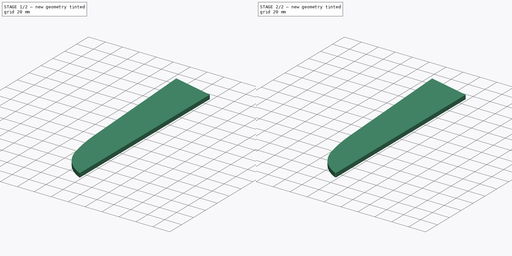
[diagram: build sequence overview — one tinted view per stage of 2, left to right]
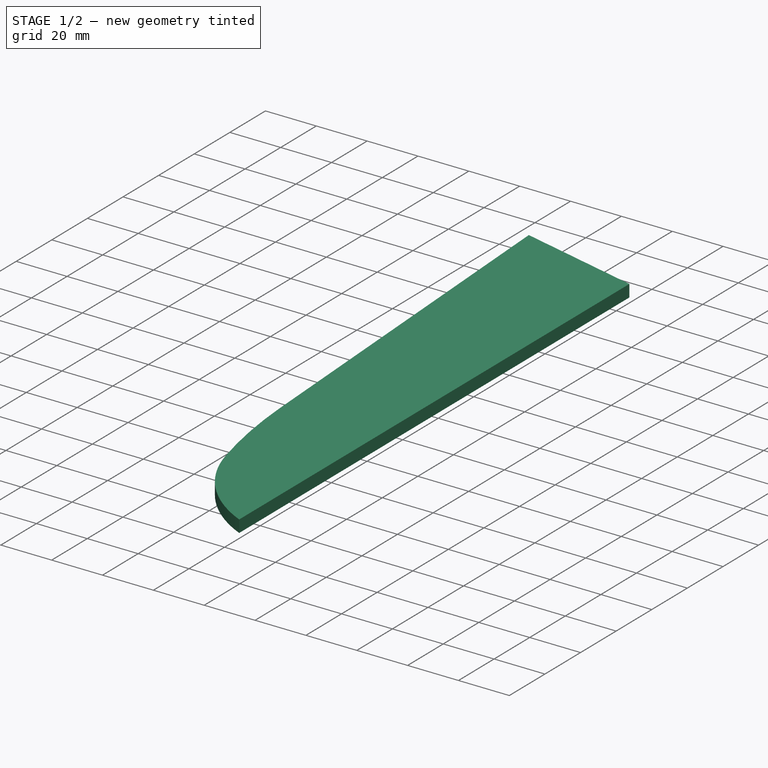
[diagram: stage 1 of 2 — iso view after this stage's code; geometry added in this stage tinted green]
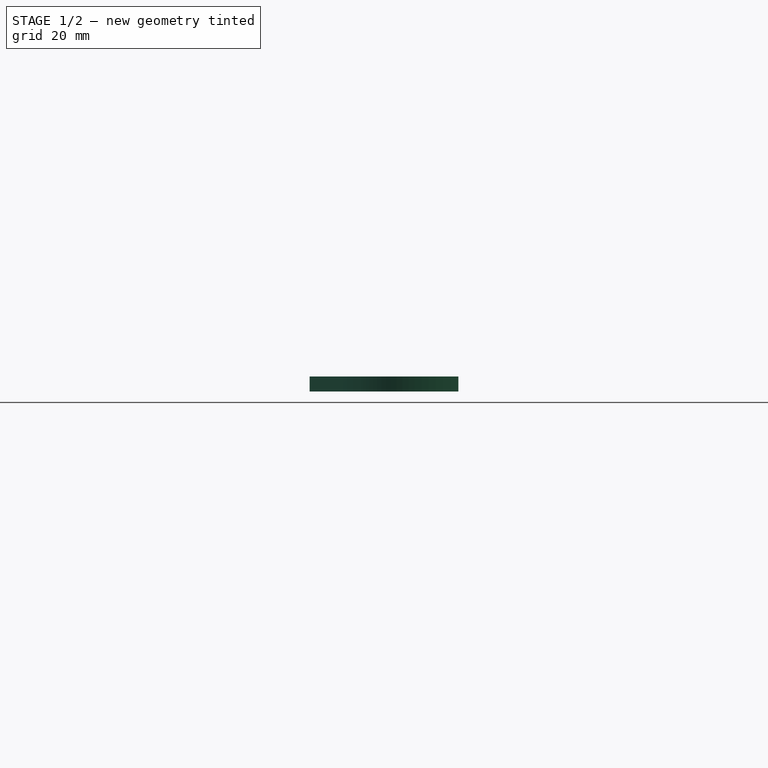
[diagram: stage 1 of 2 — front view after this stage's code; geometry added in this stage tinted green]
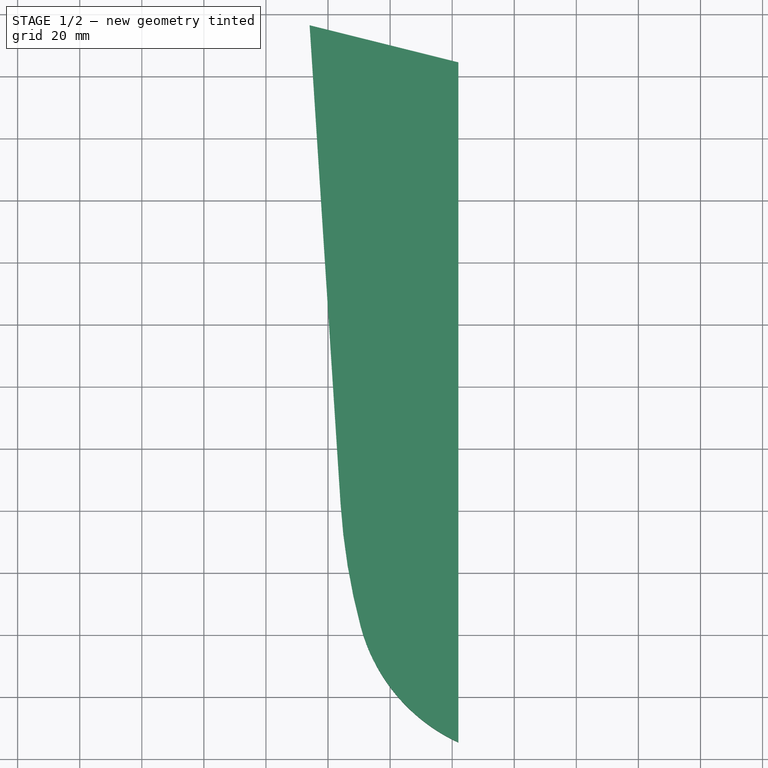
[diagram: stage 1 of 2 — top view after this stage's code; geometry added in this stage tinted green]
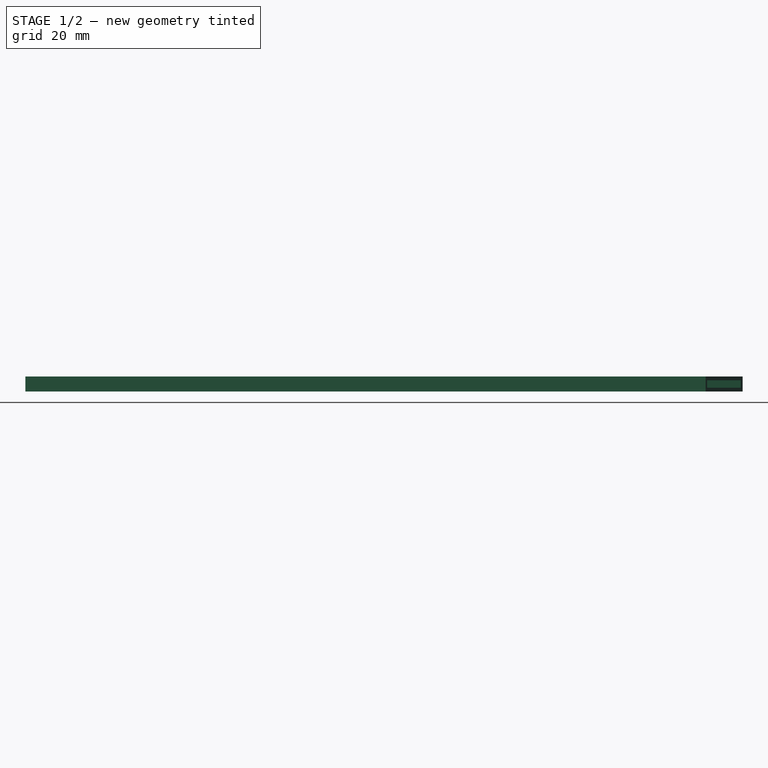
[diagram: stage 1 of 2 — right view after this stage's code; geometry added in this stage tinted green]
FCSTD DOCUMENT  (FreeCAD 0.21R33668 +26 (Git))
Label: Knifehull
License: Creative Commons Attribution 4.0
LicenseURL: https://creativecommons.org/licenses/by/4.0/
objects: Sketcher::SketchObject×2, Image::ImagePlane×1, PartDesign::Pad×1, PartDesign::Pocket×1, PartDesign::Chamfer×1, PartDesign::Body×1
note: 9 computed .brp shape members not serialized (recipe doc carries the construction recipe); baked Part::Feature solids carry a one-line shape summary decoded from their .brp

FEATURE [Image::ImagePlane] Scan_20231205
  Placement = pos=(-47.0947,-48.2734,0) rot=(0,0,-1;0.236492rad)
  XSize = 215.9
  YSize = 296.842
FEATURE [Sketcher::SketchObject] Sketch
  FullyConstrained = true
  MapMode = 5
  Support = -> [XY_Plane]
  sketch-geometry (5):
    g0: LineSegment StartX=0 StartY=85.0335 StartZ=0 EndX=-7.1e-15 EndY=-130.966 EndZ=0
    g1: ArcOfCircle CenterX=26 CenterY=-82.5 CenterZ=0 NormalX=0 NormalY=0 NormalZ=1 AngleXU=0 Radius=55 StartAngle=3.40139 EndAngle=4.22001
    g2: ArcOfCircle CenterX=170 CenterY=-44.2247 CenterZ=0 NormalX=0 NormalY=0 NormalZ=1 AngleXU=0 Radius=204 StartAngle=3.20617 EndAngle=3.40139
    g3: LineSegment StartX=-33.5748 StartY=-57.3893 StartZ=0 EndX=-43.486 EndY=95.8758 EndZ=0
    g4: LineSegment StartX=-43.486 StartY=95.8758 StartZ=0 EndX=0 EndY=85.0335 EndZ=0
  constraints (15):
    c: PointOnObject(g0,g-2)
    c: PointOnObject(g0,g-2)
    c: Radius(g2) = 204
    c: Radius(g1) = 55
    c: Tangent(g2,g1) = -1.5708
    c: Coincident(g0,g1)
    c: Coincident(g4,g3)
    c: Coincident(g4,g0)
    c: Angle(g4,g0) = 1.81514
    c: Angle(g3,g4) = 1.26187
    c: DistanceY(g0,g0) = 216
    c: DistanceX(g-1,g2) = 170
    c: DistanceX(g-1,g1) = 26
    c: DistanceY(g1,g-1) = 82.5
    c: Tangent(g3,g2) = 1.5708
FEATURE [Sketcher::SketchObject] Sketch001
  ExternalGeometry = -> [Sketch]
  FullyConstrained = true
  MapMode = 5
  Support = -> [XY_Plane]
  sketch-geometry (6):
    g0: ArcOfCircle CenterX=170 CenterY=-44.2247 CenterZ=0 NormalX=0 NormalY=0 NormalZ=1 AngleXU=0 Radius=206.4 StartAngle=3.20617 EndAngle=3.40139
    g1: ArcOfCircle CenterX=26 CenterY=-82.5 CenterZ=0 NormalX=0 NormalY=0 NormalZ=1 AngleXU=0 Radius=57.4 StartAngle=3.40139 EndAngle=4.28102
    g2: LineSegment StartX=2 StartY=-134.642 StartZ=0 EndX=2 EndY=84.5349 EndZ=0
    g3: LineSegment StartX=-35.9698 StartY=-57.5442 StartZ=0 EndX=-45.9304 EndY=96.4853 EndZ=0
    g4: LineSegment StartX=-45.9304 StartY=96.4853 StartZ=0 EndX=2 EndY=84.5349 EndZ=0
    g5: LineSegment StartX=-43.486 StartY=95.8758 StartZ=0 EndX=-45.881 EndY=95.7209 EndZ=0
  constraints (16):
    c: Coincident(g0,g-5)
    c: Coincident(g1,g-6)
    c: Vertical(g2)
    c: Coincident(g4,g3)
    c: Coincident(g4,g2)
    c: PointOnObject(g-3,g4)
    c: PointOnObject(g-4,g4)
    c: Coincident(g1,g2)
    c: Tangent(g3,g0) = 1.5708
    c: Parallel(g3,g-7)
    c: DistanceX(g-3,g2) = 2
    c: Tangent(g1,g0) = -1.5708
    c: Coincident(g5,g-7)
    c: PointOnObject(g5,g3)
    c: Perpendicular(g5,g3)
    c: Distance(g5) = 2.4
FEATURE [PartDesign::Pad] Pad
  Direction = (0,0,1)
  Length = 4.8
  Length2 = 10
  Midplane = true
  Profile = -> Sketch001
  ReferenceAxis = -> Sketch001 [N_Axis]
  Refine = true
  Type = 0
FEATURE [PartDesign::Pocket] Pocket
  BaseFeature = -> Pad
  Direction = (0,0,-1)
  Length = 2.4
  Length2 = 5
  Midplane = true
  Profile = -> Sketch
  ReferenceAxis = -> Sketch [N_Axis]
  Refine = true
  Type = 0
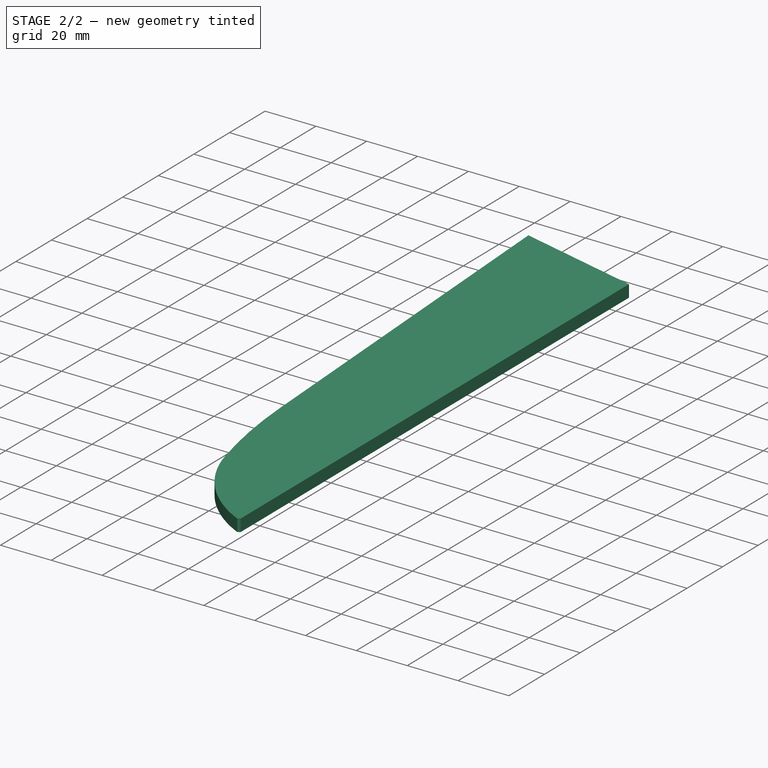
[diagram: stage 2 of 2 — iso view after this stage's code; geometry added in this stage tinted green]
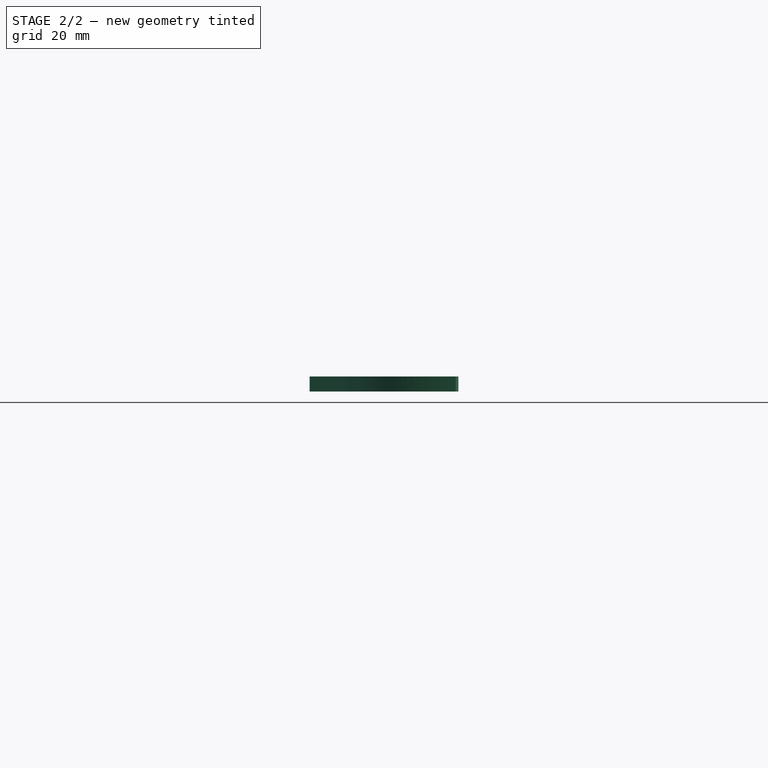
[diagram: stage 2 of 2 — front view after this stage's code; geometry added in this stage tinted green]
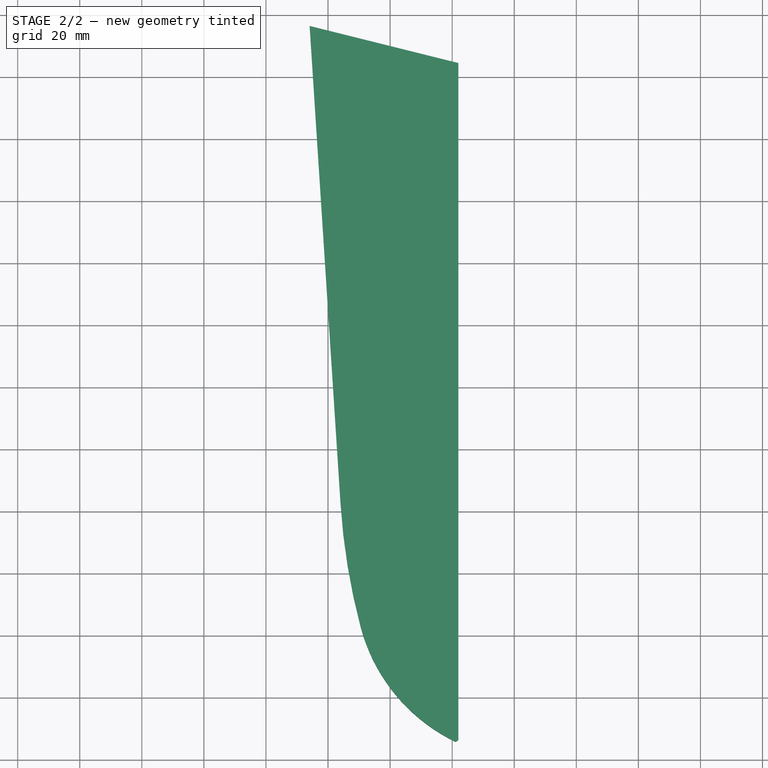
[diagram: stage 2 of 2 — top view after this stage's code; geometry added in this stage tinted green]
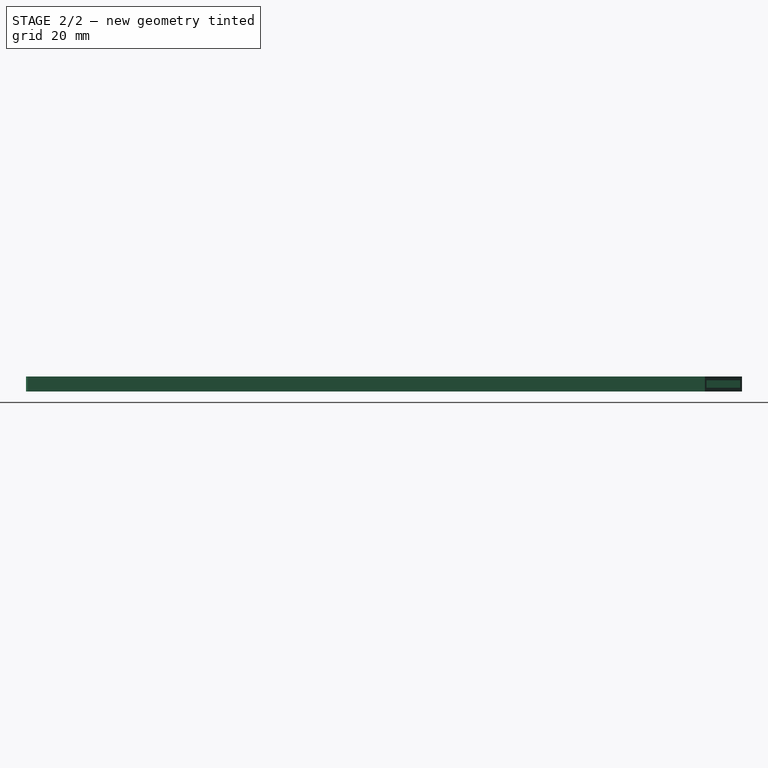
[diagram: stage 2 of 2 — right view after this stage's code; geometry added in this stage tinted green]
FEATURE [PartDesign::Chamfer] Chamfer
  Angle = 45
  Base = -> Pocket [Edge8]
  BaseFeature = -> Pocket
  ChamferType = 0
  FlipDirection = false
  Refine = true
  Size = 1
  Size2 = 1
  SupportTransform = false
  UseAllEdges = false
FEATURE [PartDesign::Body] Body
  Group = -> [Sketch,Sketch001,Pad,Pocket,Chamfer]
  Origin = -> Origin
  Tip = -> Chamfer
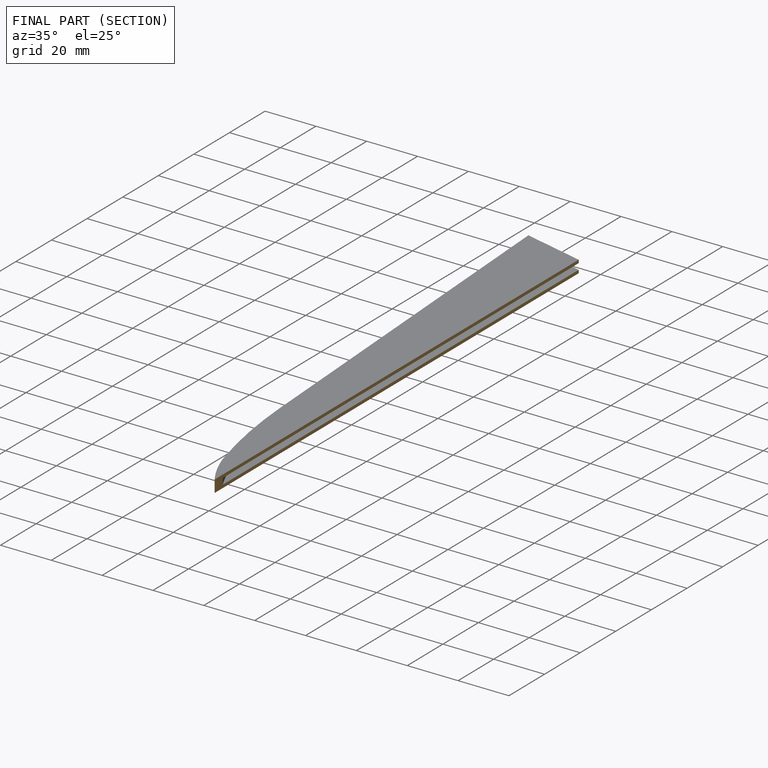
[diagram: finished part — half-section view (interior)]
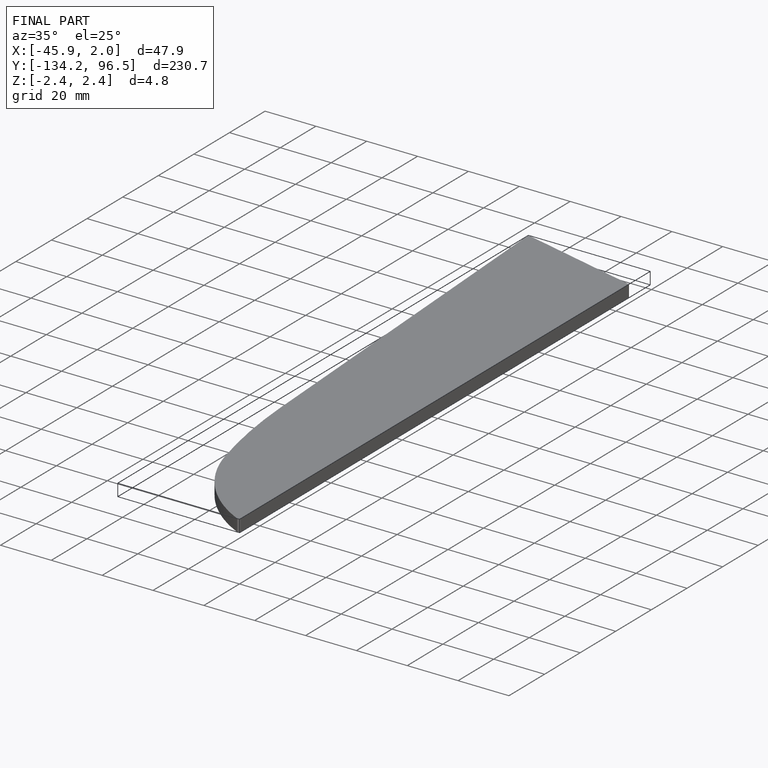
[diagram: finished part — iso view with bounding-box wireframe]
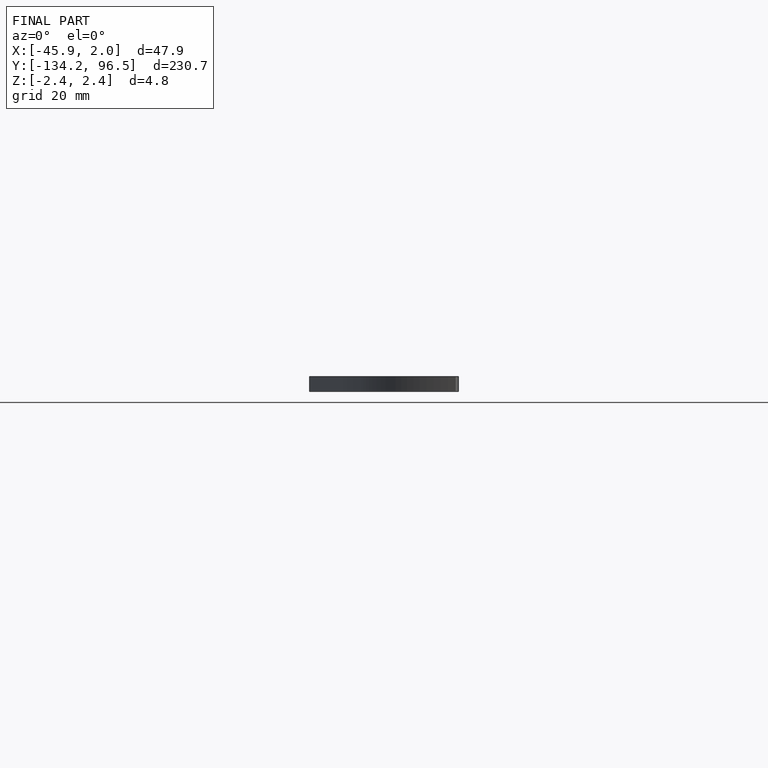
[diagram: finished part — front view with bounding-box wireframe]
